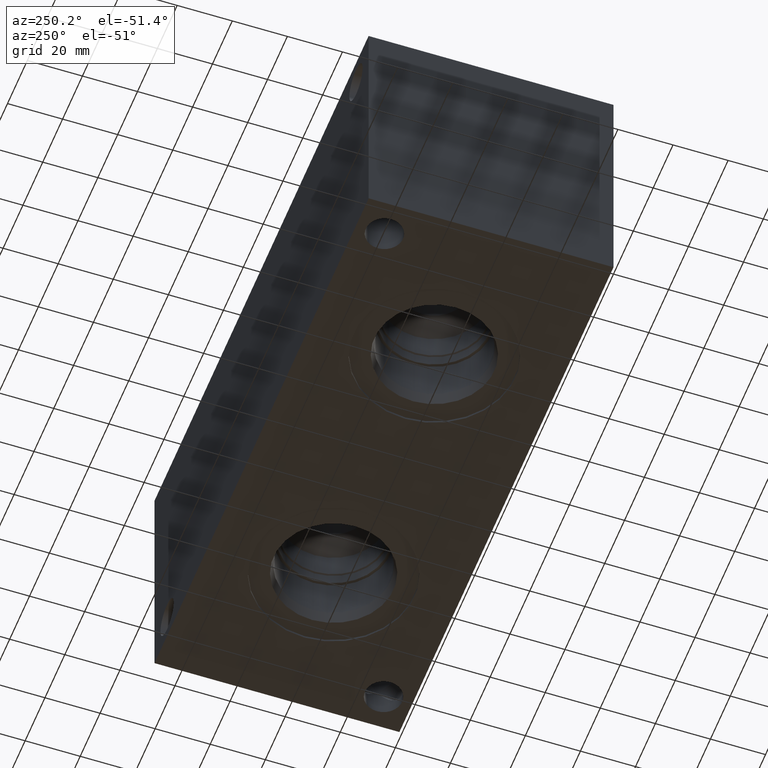
[diagram: clean part render]
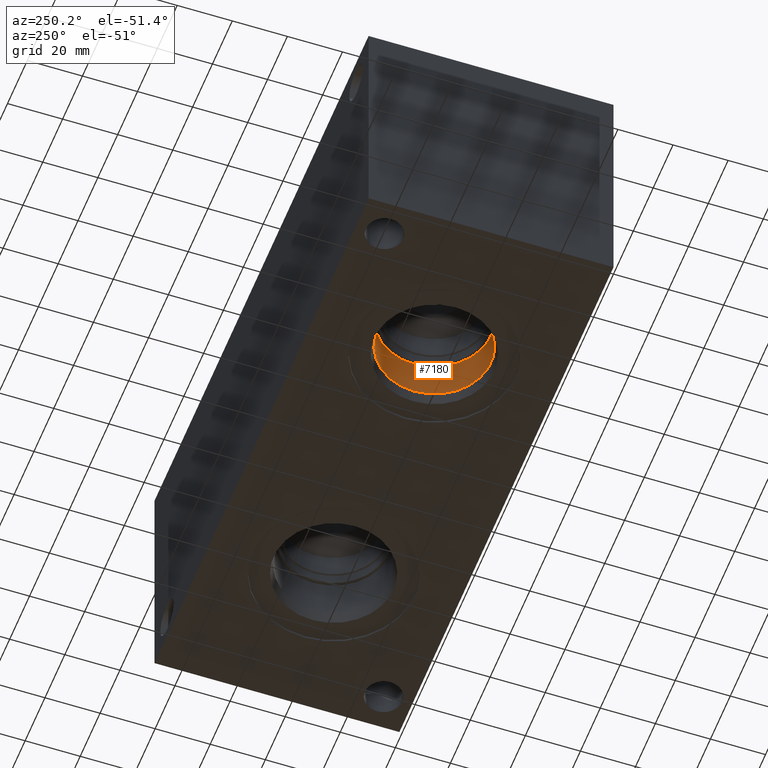
[diagram: same view with one face highlighted and labeled with its STEP entity id]
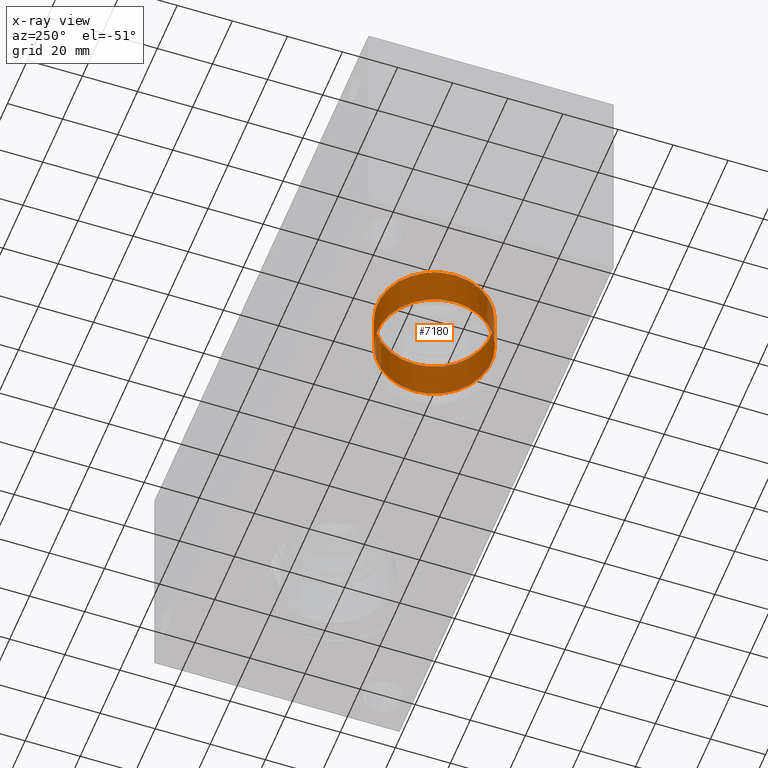
[diagram: x-ray of the same camera — body ghosted, the highlighted face saturated]
A machine part, auxiliary view. The second image highlights one B-rep face of the part: STEP entity #7180.
The next image is the same camera in x-ray: the body ghosted, the highlighted face saturated — about 0% of this face is hidden behind the body in this view.
In plain terms, the highlighted cylindrical surface (bore or boss wall) has radius 20.6375 mm, axis along (0, 0, -1).
Its self-contained STEP definition (entity closure, byte-faithful):
#48=CYLINDRICAL_SURFACE('',#7492,20.6375);
#92=CIRCLE('',#7489,20.6375);
#93=CIRCLE('',#7490,20.6375);
#95=CIRCLE('',#7493,20.6375);
#842=FACE_OUTER_BOUND('',#1242,.T.);
#1242=EDGE_LOOP('',(#6121,#6122,#6123,#6124,#6125));
#1953=LINE('',#12215,#2644);
#2644=VECTOR('',#8757,20.6375);
#3283=VERTEX_POINT('',#12206);
#3284=VERTEX_POINT('',#12207);
#3286=VERTEX_POINT('',#12213);
#4245=EDGE_CURVE('',#3283,#3284,#92,.T.);
#4246=EDGE_CURVE('',#3284,#3283,#93,.T.);
#4248=EDGE_CURVE('',#3286,#3286,#95,.T.);
#4249=EDGE_CURVE('',#3286,#3284,#1953,.T.);
#6121=ORIENTED_EDGE('',*,*,#4248,.F.);
#6122=ORIENTED_EDGE('',*,*,#4249,.T.);
#6123=ORIENTED_EDGE('',*,*,#4245,.F.);
#6124=ORIENTED_EDGE('',*,*,#4246,.F.);
#6125=ORIENTED_EDGE('',*,*,#4249,.F.);
#7180=ADVANCED_FACE('',(#842),#48,.F.);
#7489=AXIS2_PLACEMENT_3D('',#12208,#8747,#8748);
#7490=AXIS2_PLACEMENT_3D('',#12209,#8749,#8750);
#7492=AXIS2_PLACEMENT_3D('',#12212,#8753,#8754);
#7493=AXIS2_PLACEMENT_3D('',#12214,#8755,#8756);
#8747=DIRECTION('center_axis',(0.,0.,-1.));
#8748=DIRECTION('ref_axis',(1.,0.,0.));
#8749=DIRECTION('center_axis',(0.,0.,-1.));
#8750=DIRECTION('ref_axis',(1.,0.,0.));
#8753=DIRECTION('center_axis',(0.,0.,-1.));
#8754=DIRECTION('ref_axis',(1.,0.,0.));
#8755=DIRECTION('center_axis',(0.,0.,1.));
#8756=DIRECTION('ref_axis',(1.,0.,0.));
#8757=DIRECTION('',(0.,0.,1.));
#12206=CARTESIAN_POINT('',(77.7875,44.45,19.8374));
#12207=CARTESIAN_POINT('',(36.5125,44.45,19.8374));
#12208=CARTESIAN_POINT('Origin',(57.15,44.45,19.8374));
#12209=CARTESIAN_POINT('Origin',(57.15,44.45,19.8374));
#12212=CARTESIAN_POINT('Origin',(57.15,44.45,9.9187));
#12213=CARTESIAN_POINT('',(36.5125,44.45,4.97099998253897));
#12214=CARTESIAN_POINT('Origin',(57.15,44.45,4.97099998253897));
#12215=CARTESIAN_POINT('',(36.5125,44.45,9.9187));